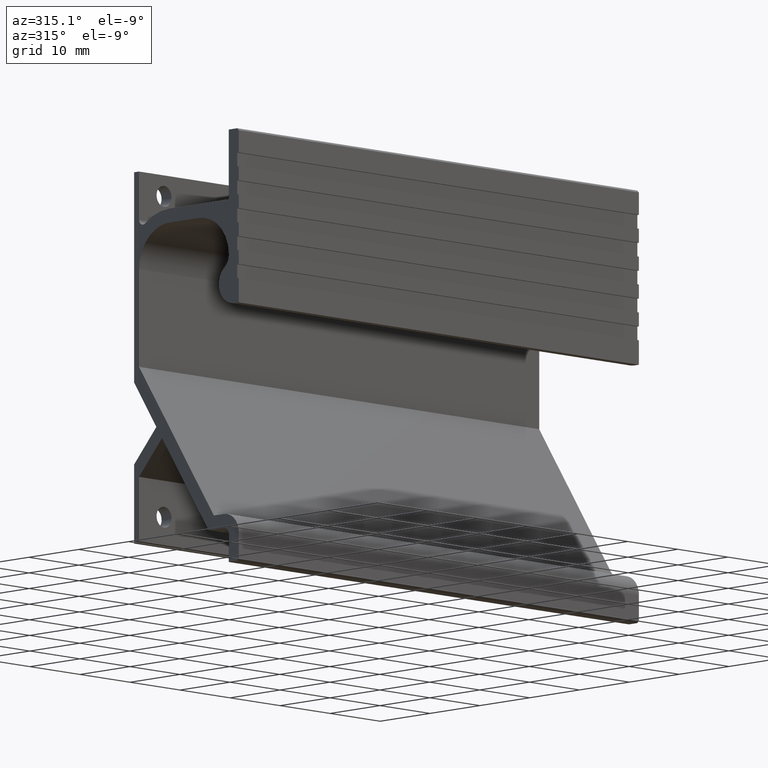
[diagram: clean part render]
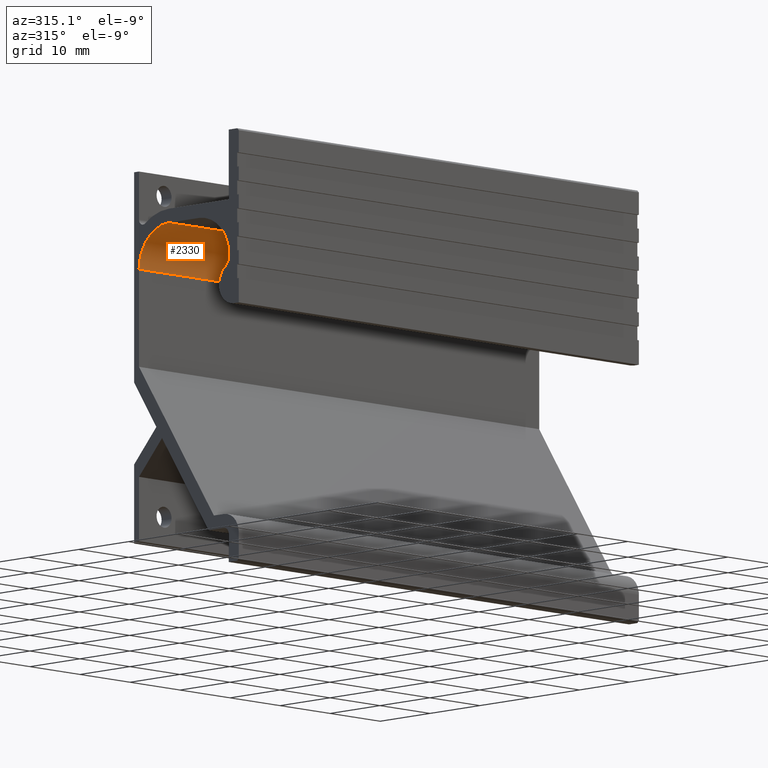
[diagram: same view with one face highlighted and labeled with its STEP entity id]
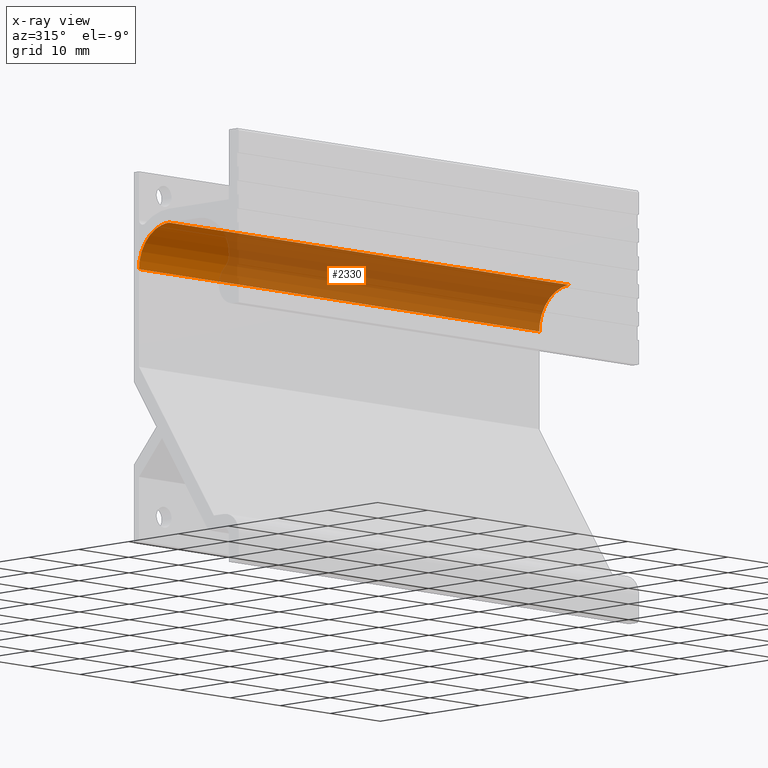
[diagram: x-ray of the same camera — body ghosted, the highlighted face saturated]
A machine part, auxiliary view. The second image highlights one B-rep face of the part: STEP entity #2330.
The next image is the same camera in x-ray: the body ghosted, the highlighted face saturated — about 80% of this face is hidden behind the body in this view.
In plain terms, the highlighted face is a freeform B-spline surface patch.
Its self-contained STEP definition (entity closure, byte-faithful):
#1233=CARTESIAN_POINT('',(40.0,12.0,50.0));
#1234=VERTEX_POINT('',#1233);
#1240=CARTESIAN_POINT('',(40.0,18.0,44.0));
#1241=VERTEX_POINT('',#1240);
#1242=CARTESIAN_POINT('',(40.0,18.0,44.0));
#1243=CARTESIAN_POINT('',(39.999999999999993,18.000000000000007,49.999999999999986));
#1244=CARTESIAN_POINT('',(40.0,12.0,49.999999999999993));
#1252=(BOUNDED_CURVE()B_SPLINE_CURVE(2,(#1242,#1243,#1244),.UNSPECIFIED.,.F.,.U.)CURVE()GEOMETRIC_REPRESENTATION_ITEM()QUASI_UNIFORM_CURVE()RATIONAL_B_SPLINE_CURVE((1.0,0.707106781186548,1.0))REPRESENTATION_ITEM(''));
#1253=EDGE_CURVE('',#1241,#1234,#1252,.T.);
#1483=CARTESIAN_POINT('',(-40.0,18.0,44.0));
#1484=VERTEX_POINT('',#1483);
#1490=CARTESIAN_POINT('',(-40.0,12.0,50.0));
#1491=VERTEX_POINT('',#1490);
#1492=CARTESIAN_POINT('',(-40.0,18.0,44.0));
#1493=CARTESIAN_POINT('',(-39.999999999999993,18.000000000000007,49.999999999999986));
#1494=CARTESIAN_POINT('',(-40.0,12.0,49.999999999999993));
#1502=(BOUNDED_CURVE()B_SPLINE_CURVE(2,(#1492,#1493,#1494),.UNSPECIFIED.,.F.,.U.)CURVE()GEOMETRIC_REPRESENTATION_ITEM()QUASI_UNIFORM_CURVE()RATIONAL_B_SPLINE_CURVE((1.0,0.707106781186548,1.0))REPRESENTATION_ITEM(''));
#1503=EDGE_CURVE('',#1484,#1491,#1502,.T.);
#2296=CARTESIAN_POINT('',(-40.0,18.0,44.0));
#2297=CARTESIAN_POINT('',(40.0,18.0,44.0));
#2298=QUASI_UNIFORM_CURVE('',1,(#2296,#2297),.UNSPECIFIED.,.F.,.U.);
#2299=EDGE_CURVE('',#1484,#1241,#2298,.T.);
#2306=CARTESIAN_POINT('',(-42.000000000000007,11.842938310152750,49.997943949853337));
#2307=CARTESIAN_POINT('',(42.049999999999997,11.842938310152750,49.997943949853337));
#2308=CARTESIAN_POINT('',(-42.000000000000007,18.388545531564716,50.169346707175961));
#2309=CARTESIAN_POINT('',(42.050000000000004,18.388545531564716,50.169346707175961));
#2310=CARTESIAN_POINT('',(-42.000000000000007,17.988808790531220,43.633708762790860));
#2311=CARTESIAN_POINT('',(42.049999999999997,17.988808790531220,43.633708762790860));
#2319=(BOUNDED_SURFACE()B_SPLINE_SURFACE(1,2,((#2306,#2308,#2310),(#2307,#2309,#2311)),.UNSPECIFIED.,.F.,.F.,.U.)B_SPLINE_SURFACE_WITH_KNOTS((2,2),(3,3),(0.0,84.050000000000026),(0.0,10.560252741404010),.UNSPECIFIED.)GEOMETRIC_REPRESENTATION_ITEM()RATIONAL_B_SPLINE_SURFACE(((1.0,0.675590207615660,1.0),(1.0,0.675590207615660,1.0)))REPRESENTATION_ITEM('')SURFACE());
#2320=ORIENTED_EDGE('',*,*,#1253,.T.);
#2321=CARTESIAN_POINT('',(-40.0,12.0,50.0));
#2322=CARTESIAN_POINT('',(40.0,12.0,50.0));
#2323=QUASI_UNIFORM_CURVE('',1,(#2321,#2322),.UNSPECIFIED.,.F.,.U.);
#2324=EDGE_CURVE('',#1491,#1234,#2323,.T.);
#2325=ORIENTED_EDGE('',*,*,#2324,.F.);
#2326=ORIENTED_EDGE('',*,*,#1503,.F.);
#2327=ORIENTED_EDGE('',*,*,#2299,.T.);
#2328=EDGE_LOOP('',(#2320,#2325,#2326,#2327));
#2329=FACE_OUTER_BOUND('',#2328,.T.);
#2330=ADVANCED_FACE('',(#2329),#2319,.F.);